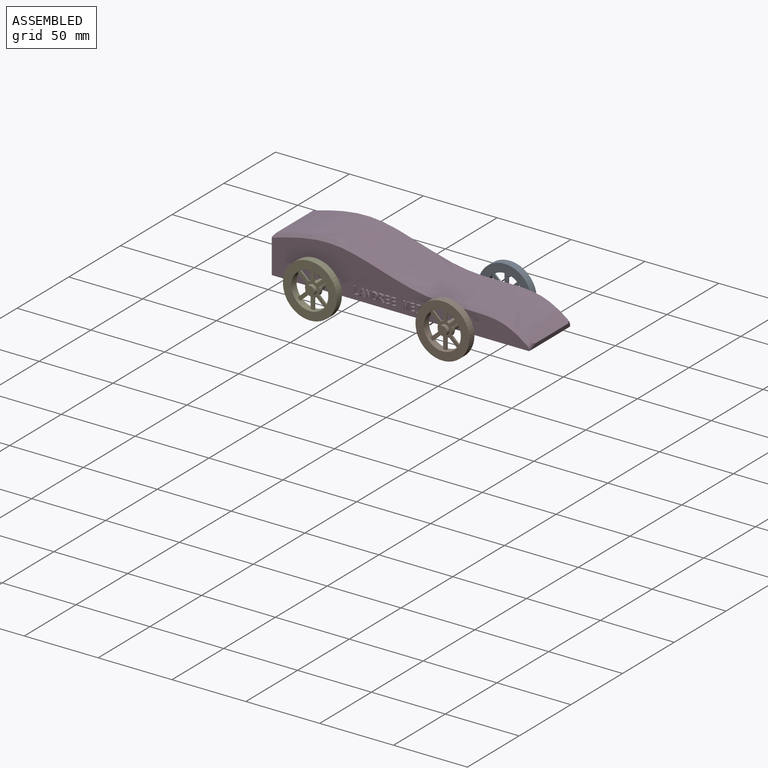
[diagram: assembled view]
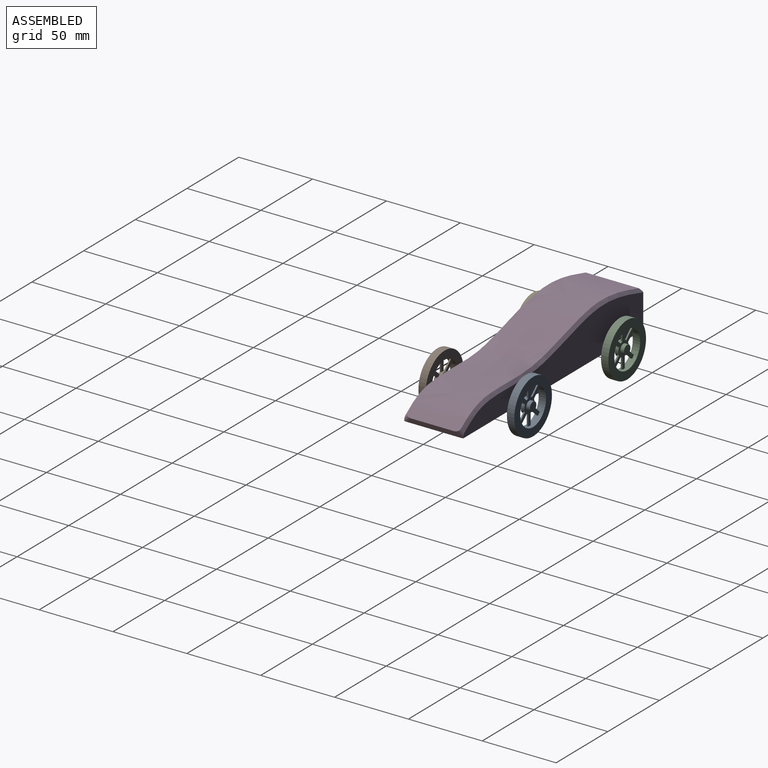
[diagram: assembled view, second angle]
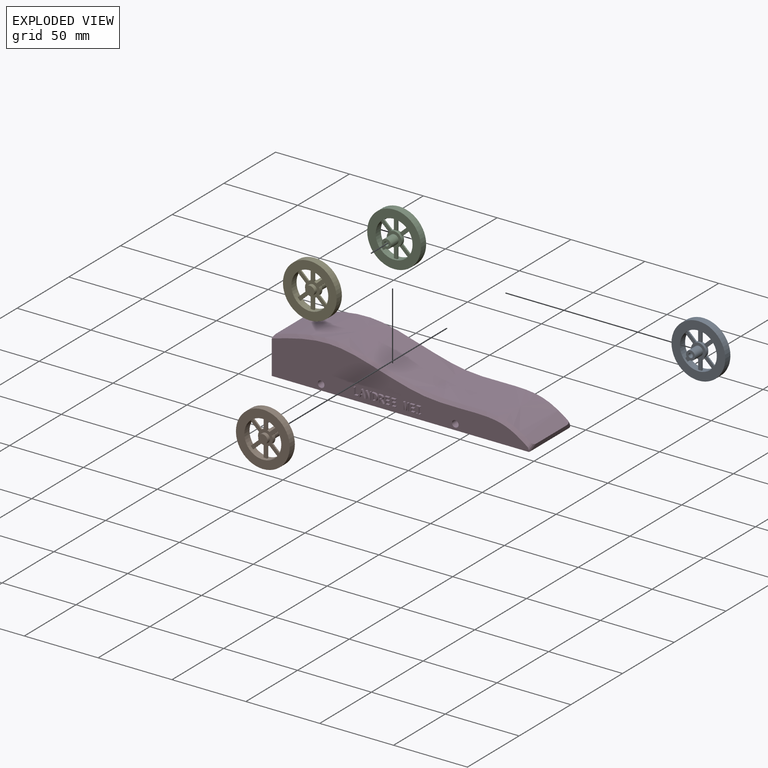
[diagram: exploded view]
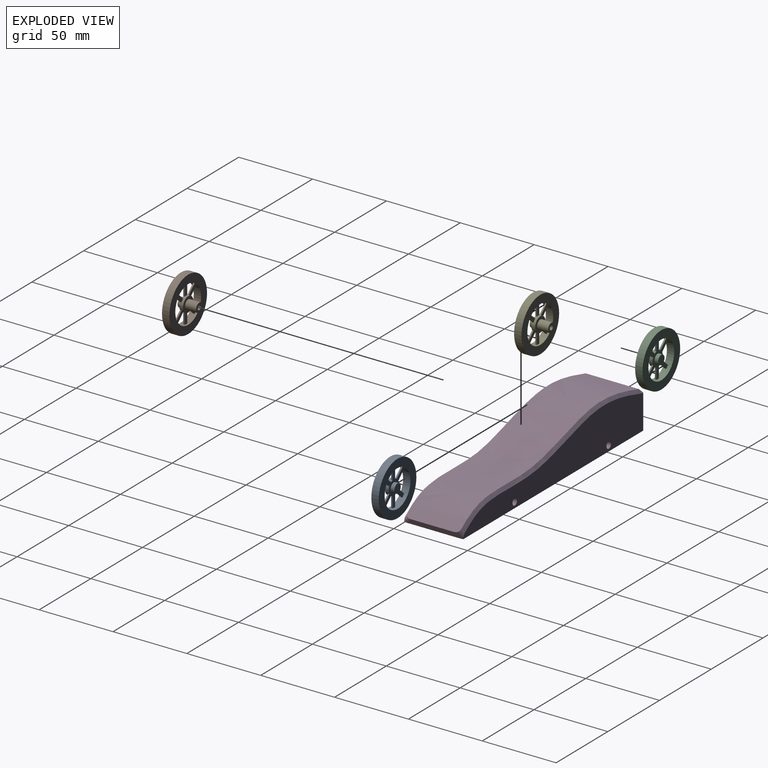
[diagram: exploded view, second angle]
ASSEMBLY  parts=5 mates=2
PART A: 31 faces, bbox 36.4x12.5x36.4 mm
  f0: cylinder r=3.1mm len=7.5mm, axis (0,-1,0), area 146.1mm2, adj f2,f5
  f1: cylinder r=1.5mm len=10mm, axis (0,-1,0), area 94.2mm2, adj f2,f3
  f2: plane 6.2x6.2mm, normal (0,-1,0), area 23.1mm2, adj f0,f1
  f3: plane 3x3mm, normal (0,-1,0), area 7.1mm2, adj f1
  f4: cylinder r=5mm len=10mm, axis (0,1,0), area 64mm2, adj f5,f6,f9,f10,f11,f12,f13,f14
  f5: plane 10x10mm, normal (0,-1,0), area 48.3mm2, adj f0,f4
  f6: plane 25.02x19.87mm, normal (0,1,0), area 156.8mm2, adj f4,f8,f9,f10,f12,f13,f15,f16
  f7: plane 6.18x6.18mm, normal (0,1,0), area 30mm2, adj f8
  f8: cylinder r=3.09mm len=6.18mm, axis (0,-1,0), area 48.5mm2, adj f6,f7
  f9: plane 5.55x5.17mm, normal (0.68,0,-0.73), area 7.6mm2, adj f4,f6,f11,f27
  f10: plane 5.55x5.17mm, normal (-0.68,0,0.73), area 7.6mm2, adj f4,f6,f11,f27
  f11: plane 7.19x6.93mm, normal (0,-1,0), area 18.1mm2, adj f4,f9,f10,f27
  f12: plane 7.59x1mm, normal (1,0,0), area 7.6mm2, adj f4,f6,f14,f27
  f13: plane 7.59x1mm, normal (-1,0,0), area 7.6mm2, adj f4,f6,f14,f27
  f14: plane 7.65x2.4mm, normal (0,-1,0), area 18.1mm2, adj f4,f12,f13,f27
  f15: plane 5.55x5.17mm, normal (-0.68,0,-0.73), area 7.6mm2, adj f4,f6,f17,f27
  f16: plane 5.55x5.17mm, normal (0.68,0,0.73), area 7.6mm2, adj f4,f6,f17,f27
  f17: plane 7.19x6.93mm, normal (0,-1,0), area 18.1mm2, adj f4,f15,f16,f27
  f18: plane 5.55x5.17mm, normal (-0.68,0,0.73), area 7.6mm2, adj f4,f6,f20,f27
  f19: plane 5.55x5.17mm, normal (0.68,0,-0.73), area 7.6mm2, adj f4,f6,f20,f27
  f20: plane 7.19x6.93mm, normal (0,-1,0), area 18.1mm2, adj f4,f18,f19,f27
  f21: plane 7.59x1mm, normal (-1,0,0), area 7.6mm2, adj f4,f6,f23,f27
  f22: plane 7.59x1mm, normal (1,0,0), area 7.6mm2, adj f4,f6,f23,f27
  f23: plane 7.65x2.4mm, normal (0,-1,0), area 18.1mm2, adj f4,f21,f22,f27
  f24: plane 5.55x5.17mm, normal (-0.68,0,-0.73), area 7.6mm2, adj f4,f6,f26,f27
  f25: plane 5.55x5.17mm, normal (0.68,0,0.73), area 7.6mm2, adj f4,f6,f26,f27
  f26: plane 7.19x6.93mm, normal (0,-1,0), area 18.1mm2, adj f4,f24,f25,f27
  f27: cylinder r=12.5mm len=25mm, axis (0,-1,0), area 378.3mm2, adj f6,f9,f10,f11,f12,f13,f14,f15
  f28: cylinder r=18.2mm len=36.4mm, axis (0,-1,0), area 571.8mm2, adj f29,f30
  f29: plane 36.4x36.4mm, normal (0,1,0), area 549.7mm2, adj f27,f28
  f30: plane 36.4x36.4mm, normal (0,-1,0), area 549.7mm2, adj f27,f28
PART B: 31 faces, bbox 36.4x12.5x36.4 mm
  f0: cylinder r=3.1mm len=7.5mm, axis (0,1,0), area 146.1mm2, adj f2,f5
  f1: cylinder r=1.5mm len=10mm, axis (0,1,0), area 94.2mm2, adj f2,f3
  f2: plane 6.2x6.2mm, normal (0,1,0), area 23.1mm2, adj f0,f1
  f3: plane 3x3mm, normal (0,1,0), area 7.1mm2, adj f1
  f4: cylinder r=5mm len=10mm, axis (0,-1,0), area 64mm2, adj f5,f6,f9,f10,f11,f12,f13,f14
  f5: plane 10x10mm, normal (0,1,0), area 48.3mm2, adj f0,f4
  f6: plane 25.02x19.87mm, normal (0,-1,0), area 156.8mm2, adj f4,f8,f9,f10,f12,f13,f15,f16
  f7: plane 6.18x6.18mm, normal (0,-1,0), area 30mm2, adj f8
  f8: cylinder r=3.09mm len=6.18mm, axis (0,1,0), area 48.5mm2, adj f6,f7
  f9: plane 5.55x5.17mm, normal (0.68,0,-0.73), area 7.6mm2, adj f4,f6,f11,f27
  f10: plane 5.55x5.17mm, normal (-0.68,0,0.73), area 7.6mm2, adj f4,f6,f11,f27
  f11: plane 7.19x6.93mm, normal (0,1,0), area 18.1mm2, adj f4,f9,f10,f27
  f12: plane 7.59x1mm, normal (1,0,0), area 7.6mm2, adj f4,f6,f14,f27
  f13: plane 7.59x1mm, normal (-1,0,0), area 7.6mm2, adj f4,f6,f14,f27
  f14: plane 7.65x2.4mm, normal (0,1,0), area 18.1mm2, adj f4,f12,f13,f27
  f15: plane 5.55x5.17mm, normal (-0.68,0,-0.73), area 7.6mm2, adj f4,f6,f17,f27
  f16: plane 5.55x5.17mm, normal (0.68,0,0.73), area 7.6mm2, adj f4,f6,f17,f27
  f17: plane 7.19x6.93mm, normal (0,1,0), area 18.1mm2, adj f4,f15,f16,f27
  f18: plane 5.55x5.17mm, normal (-0.68,0,0.73), area 7.6mm2, adj f4,f6,f20,f27
  f19: plane 5.55x5.17mm, normal (0.68,0,-0.73), area 7.6mm2, adj f4,f6,f20,f27
  f20: plane 7.19x6.93mm, normal (0,1,0), area 18.1mm2, adj f4,f18,f19,f27
  f21: plane 7.59x1mm, normal (-1,0,0), area 7.6mm2, adj f4,f6,f23,f27
  f22: plane 7.59x1mm, normal (1,0,0), area 7.6mm2, adj f4,f6,f23,f27
  f23: plane 7.65x2.4mm, normal (0,1,0), area 18.1mm2, adj f4,f21,f22,f27
  f24: plane 5.55x5.17mm, normal (-0.68,0,-0.73), area 7.6mm2, adj f4,f6,f26,f27
  f25: plane 5.55x5.17mm, normal (0.68,0,0.73), area 7.6mm2, adj f4,f6,f26,f27
  f26: plane 7.19x6.93mm, normal (0,1,0), area 18.1mm2, adj f4,f24,f25,f27
  f27: cylinder r=12.5mm len=25mm, axis (0,1,0), area 378.3mm2, adj f6,f9,f10,f11,f12,f13,f14,f15
  f28: cylinder r=18.2mm len=36.4mm, axis (0,1,0), area 571.8mm2, adj f29,f30
  f29: plane 36.4x36.4mm, normal (0,-1,0), area 549.7mm2, adj f27,f28
  f30: plane 36.4x36.4mm, normal (0,1,0), area 549.7mm2, adj f27,f28
PART C: same geometry as A
PART D: 157 faces, bbox 190.4x44.5x34.6 mm
  f0: plane 174.54x30.7mm, normal (0,-1,0), area 3333.3mm2, adj f1,f3,f8,f9,f13,f14,f16,f17
  f1: plane 40x23.49mm, normal (-1,0,0), area 826.3mm2, adj f0,f2,f3,f7,f10,f11,f13
  f2: plane 174.54x30.7mm, normal (0,1,0), area 3415.2mm2, adj f1,f3,f8,f9,f10,f15
  f3: plane 174.34x40.05mm, normal (0,0,-1), area 6971.5mm2, adj f0,f1,f2,f12,f14,f15
  f4: extruded ~174.08x36mm, area 6463.9mm2, adj f10,f11,f12,f13,f14,f15
  f5: cylinder r=5mm len=44mm, axis (-1,0,0), area 1382.3mm2, adj f6,f7
  f6: sphere r=5mm, area 157.1mm2, adj f5
  f7: cone r=5mm half-angle=45deg, axis (-1,0,0), area 48.9mm2, adj f1,f5
  f8: cylinder r=2.25mm len=40mm, axis (0,-1,0), area 565.5mm2, adj f0,f2
  f9: cylinder r=2.25mm len=40mm, axis (0,-1,0), area 565.5mm2, adj f0,f2
  f10: bspline ~189.91x34.13mm, area 503.3mm2, adj f1,f2,f4,f11,f15
  f11: plane 38.9x1.92mm, normal (-0.8,0,0.6), area 90.2mm2, adj f1,f4,f10,f13
  f12: plane 36.61x3.58mm, normal (0.95,0,-0.33), area 124.9mm2, adj f3,f4,f14,f15
  f13: bspline ~189.91x34.13mm, area 503.9mm2, adj f0,f1,f4,f11,f14
  f14: bspline ~8.2x7.67mm, area 19.4mm2, adj f0,f3,f4,f12,f13
  f15: bspline ~8.2x7.67mm, area 19.4mm2, adj f2,f3,f4,f10,f12
  f16: plane 2.84x1.5mm, normal (0,0,-1), area 4.3mm2, adj f0,f17,f21,f22
  f17: plane 1.5x0.57mm, normal (1,0,0), area 0.9mm2, adj f0,f16,f18,f22
  f18: plane 2.19x1.5mm, normal (0,0,1), area 3.3mm2, adj f0,f17,f19,f22
  f19: plane 4.48x1.5mm, normal (1,0,0), area 6.7mm2, adj f0,f18,f20,f22
  f20: plane 1.5x0.65mm, normal (0,0,1), area 1mm2, adj f0,f19,f21,f22
  f21: plane 5.05x1.5mm, normal (-1,0,0), area 7.6mm2, adj f0,f16,f20,f22
  f22: plane 5.05x2.84mm, normal (0,-1,0), area 4.5mm2, adj f16,f17,f18,f19,f20,f21
  f23: plane 1.5x0.66mm, normal (0,0,-1), area 1mm2, adj f0,f24,f35,f36
  f24: plane 5.07x1.68mm, normal (0.95,0,0.31), area 8mm2, adj f0,f23,f25,f36
  f25: plane 1.5x0.67mm, normal (0,0,1), area 1mm2, adj f0,f24,f26,f36
  f26: plane 5.07x1.67mm, normal (-0.95,0,0.31), area 8mm2, adj f0,f25,f27,f36
  f27: plane 1.5x0.66mm, normal (0,0,-1), area 1mm2, adj f0,f26,f28,f36
  f28: plane 1.57x1.5mm, normal (0.95,0,-0.31), area 2.5mm2, adj f0,f27,f29,f36
  f29: plane 1.7x1.5mm, normal (0,0,-1), area 2.5mm2, adj f0,f28,f35,f36
  f30: plane 1.5x1.33mm, normal (0,0,1), area 2mm2, adj f31,f34,f36,f37
  f31: plane 1.61x1.5mm, normal (0.96,0,-0.29), area 2.5mm2, adj f30,f32,f36,f37
  f32: extruded ~1.5x0.63mm, area 1mm2, adj f31,f33,f36,f37
  f33: extruded ~1.5x0.78mm, area 1.2mm2, adj f32,f34,f36,f37
  f34: plane 1.5x1.47mm, normal (-0.95,0,-0.3), area 2.3mm2, adj f30,f33,f36,f37
  f35: plane 1.57x1.5mm, normal (-0.95,0,-0.3), area 2.5mm2, adj f0,f23,f29,f36
  f36: plane 5.07x4.02mm, normal (0,-1,0), area 7mm2, adj f23,f24,f25,f26,f27,f28,f29,f30
  f37: plane 2.25x1.33mm, normal (0,-1,0), area 1.4mm2, adj f30,f31,f32,f33,f34
  f38: plane 5.05x1.5mm, normal (1,0,0), area 7.6mm2, adj f0,f39,f51,f52
  f39: plane 1.5x0.6mm, normal (0,0,1), area 0.9mm2, adj f0,f38,f40,f52
  f40: plane 2.77x1.5mm, normal (-1,0,0), area 4.1mm2, adj f0,f39,f41,f52
  f41: extruded ~1.5x1.4mm, area 2.1mm2, adj f0,f40,f42,f52
  f42: plane 1.5x0.02mm, normal (0,0,1), area 0mm2, adj f0,f41,f43,f52
  f43: plane 4.16x2mm, normal (0.9,0,0.43), area 6.9mm2, adj f0,f42,f44,f52
  f44: plane 1.5x0.74mm, normal (0,0,1), area 1.1mm2, adj f0,f43,f45,f52
  f45: plane 5.05x1.5mm, normal (-1,0,0), area 7.6mm2, adj f0,f44,f46,f52
  f46: plane 1.5x0.59mm, normal (0,0,-1), area 0.9mm2, adj f0,f45,f47,f52
  f47: plane 2.74x1.5mm, normal (1,0,0), area 4.1mm2, adj f0,f46,f48,f52
  f48: extruded ~1.5x1.44mm, area 2.2mm2, adj f0,f47,f49,f52
  f49: plane 1.5x0.03mm, normal (0,0,-1), area 0mm2, adj f0,f48,f50,f52
  f50: plane 4.18x2.01mm, normal (-0.9,0,-0.43), area 7mm2, adj f0,f49,f51,f52
  f51: plane 1.5x0.74mm, normal (0,0,-1), area 1.1mm2, adj f0,f38,f50,f52
  f52: plane 5.05x3.31mm, normal (0,-1,0), area 8.6mm2, adj f38,f39,f40,f41,f42,f43,f44,f45
  f53: plane 1.5x1.04mm, normal (0,0,-1), area 1.6mm2, adj f0,f54,f64,f65
  f54: extruded ~1.82x1.5mm, area 3mm2, adj f0,f53,f55,f65
  f55: extruded ~1.91x1.5mm, area 3.1mm2, adj f0,f54,f56,f65
  f56: extruded ~1.83x1.5mm, area 3mm2, adj f0,f55,f57,f65
  f57: extruded ~1.7x1.5mm, area 2.8mm2, adj f0,f56,f58,f65
  f58: plane 1.5x1.18mm, normal (0,0,1), area 1.8mm2, adj f0,f57,f64,f65
  f59: plane 1.5x0.47mm, normal (0,0,-1), area 0.7mm2, adj f60,f63,f65,f66
  f60: extruded ~1.95x1.7mm, area 4.5mm2, adj f59,f61,f65,f66
  f61: extruded ~2x1.84mm, area 4.7mm2, adj f60,f62,f65,f66
  f62: plane 1.5x0.33mm, normal (0,0,1), area 0.5mm2, adj f61,f63,f65,f66
  f63: plane 3.95x1.5mm, normal (1,0,0), area 5.9mm2, adj f59,f62,f65,f66
  f64: plane 5.05x1.5mm, normal (-1,0,0), area 7.6mm2, adj f0,f53,f58,f65
  f65: plane 5.05x3.5mm, normal (0,-1,0), area 8.1mm2, adj f53,f54,f55,f56,f57,f58,f59,f60
  f66: plane 3.95x2.17mm, normal (0,-1,0), area 7.4mm2, adj f59,f60,f61,f62,f63
  f67: plane 1.5x0.79mm, normal (0,0,-1), area 1.2mm2, adj f0,f68,f83,f84
  f68: plane 2.09x1.5mm, normal (-0.87,0,-0.5), area 3.6mm2, adj f0,f67,f69,f84
  f69: plane 1.5x0.76mm, normal (0,0,-1), area 1.1mm2, adj f0,f68,f70,f84
  f70: plane 2.26x1.5mm, normal (0.86,0,0.52), area 4mm2, adj f0,f69,f71,f84
  f71: extruded ~1.5x1.35mm, area 2.7mm2, adj f0,f70,f72,f84
  f72: extruded ~1.8x1.5mm, area 3.9mm2, adj f0,f71,f73,f84
  f73: plane 1.5x1.23mm, normal (0,0,1), area 1.9mm2, adj f0,f72,f74,f84
  f74: plane 5.05x1.5mm, normal (-1,0,0), area 7.6mm2, adj f0,f73,f75,f84
  f75: plane 1.5x0.65mm, normal (0,0,-1), area 1mm2, adj f0,f74,f83,f84
  f76: plane 1.87x1.5mm, normal (1,0,0), area 2.8mm2, adj f77,f82,f84,f85
  f77: plane 1.5x0.55mm, normal (0,0,-1), area 0.8mm2, adj f76,f78,f84,f85
  f78: extruded ~1.5x0.89mm, area 1.4mm2, adj f77,f79,f84,f85
  f79: extruded ~1.5x0.7mm, area 1.2mm2, adj f78,f80,f84,f85
  f80: extruded ~1.5x0.73mm, area 1.2mm2, adj f79,f81,f84,f85
  f81: extruded ~1.5x0.87mm, area 1.4mm2, adj f80,f82,f84,f85
  f82: plane 1.5x0.57mm, normal (0,0,1), area 0.8mm2, adj f76,f81,f84,f85
  f83: plane 2.09x1.5mm, normal (1,0,0), area 3.1mm2, adj f0,f67,f75,f84
  f84: plane 5.05x3.4mm, normal (0,-1,0), area 8mm2, adj f67,f68,f69,f70,f71,f72,f73,f74
  f85: plane 1.87x1.72mm, normal (0,-1,0), area 2.9mm2, adj f76,f77,f78,f79,f80,f81,f82
  f86: plane 1.5x0.57mm, normal (1,0,0), area 0.9mm2, adj f0,f87,f97,f98
  f87: plane 2.27x1.5mm, normal (0,0,1), area 3.4mm2, adj f0,f86,f88,f98
  f88: plane 1.8x1.5mm, normal (1,0,0), area 2.7mm2, adj f0,f87,f89,f98
  f89: plane 2.13x1.5mm, normal (0,0,-1), area 3.2mm2, adj f0,f88,f90,f98
  f90: plane 1.5x0.56mm, normal (1,0,0), area 0.8mm2, adj f0,f89,f91,f98
  f91: plane 2.13x1.5mm, normal (0,0,1), area 3.2mm2, adj f0,f90,f92,f98
  f92: plane 1.56x1.5mm, normal (1,0,0), area 2.3mm2, adj f0,f91,f93,f98
  f93: plane 2.27x1.5mm, normal (0,0,-1), area 3.4mm2, adj f0,f92,f94,f98
  f94: plane 1.5x0.57mm, normal (1,0,0), area 0.9mm2, adj f0,f93,f95,f98
  f95: plane 2.91x1.5mm, normal (0,0,1), area 4.4mm2, adj f0,f94,f96,f98
  f96: plane 5.05x1.5mm, normal (-1,0,0), area 7.6mm2, adj f0,f95,f97,f98
  f97: plane 2.91x1.5mm, normal (0,0,-1), area 4.4mm2, adj f0,f86,f96,f98
  f98: plane 5.05x2.91mm, normal (0,-1,0), area 7mm2, adj f86,f87,f88,f89,f90,f91,f92,f93
  f99: plane 1.5x0.57mm, normal (1,0,0), area 0.9mm2, adj f0,f100,f110,f111
  f100: plane 2.27x1.5mm, normal (0,0,1), area 3.4mm2, adj f0,f99,f101,f111
  f101: plane 1.8x1.5mm, normal (1,0,0), area 2.7mm2, adj f0,f100,f102,f111
  f102: plane 2.13x1.5mm, normal (0,0,-1), area 3.2mm2, adj f0,f101,f103,f111
  f103: plane 1.5x0.56mm, normal (1,0,0), area 0.8mm2, adj f0,f102,f104,f111
  f104: plane 2.13x1.5mm, normal (0,0,1), area 3.2mm2, adj f0,f103,f105,f111
  f105: plane 1.56x1.5mm, normal (1,0,0), area 2.3mm2, adj f0,f104,f106,f111
  f106: plane 2.27x1.5mm, normal (0,0,-1), area 3.4mm2, adj f0,f105,f107,f111
  f107: plane 1.5x0.57mm, normal (1,0,0), area 0.9mm2, adj f0,f106,f108,f111
  f108: plane 2.91x1.5mm, normal (0,0,1), area 4.4mm2, adj f0,f107,f109,f111
  f109: plane 5.05x1.5mm, normal (-1,0,0), area 7.6mm2, adj f0,f108,f110,f111
  f110: plane 2.91x1.5mm, normal (0,0,-1), area 4.4mm2, adj f0,f99,f109,f111
  f111: plane 5.05x2.91mm, normal (0,-1,0), area 7mm2, adj f99,f100,f101,f102,f103,f104,f105,f106
  f112: plane 1.5x0.53mm, normal (0,0,-1), area 0.8mm2, adj f0,f113,f129,f130
  f113: plane 4.42x1.5mm, normal (0.98,0,-0.22), area 6.8mm2, adj f0,f112,f114,f130
  f114: plane 1.5x0.03mm, normal (0,0,-1), area 0mm2, adj f0,f113,f115,f130
  f115: extruded ~1.5x1.35mm, area 2mm2, adj f0,f114,f116,f130
  f116: plane 3.07x1.5mm, normal (-1,0,0), area 4.6mm2, adj f0,f115,f117,f130
  f117: plane 1.5x0.53mm, normal (0,0,-1), area 0.8mm2, adj f0,f116,f118,f130
  f118: plane 5.05x1.5mm, normal (1,0,0), area 7.6mm2, adj f0,f117,f119,f130
  f119: plane 1.5x0.87mm, normal (0,0,1), area 1.3mm2, adj f0,f118,f120,f130
  f120: plane 4.12x1.5mm, normal (-0.98,0,0.21), area 6.3mm2, adj f0,f119,f121,f130
  f121: plane 1.5x0.02mm, normal (0,0,1), area 0mm2, adj f0,f120,f122,f130
  f122: plane 4.12x1.5mm, normal (0.98,0,0.2), area 6.3mm2, adj f0,f121,f123,f130
  f123: plane 1.5x0.85mm, normal (0,0,1), area 1.3mm2, adj f0,f122,f124,f130
  f124: plane 5.05x1.5mm, normal (-1,0,0), area 7.6mm2, adj f0,f123,f125,f130
  f125: plane 1.5x0.52mm, normal (0,0,-1), area 0.8mm2, adj f0,f124,f126,f130
  f126: plane 3.02x1.5mm, normal (1,0,0), area 4.5mm2, adj f0,f125,f127,f130
  f127: extruded ~1.5x1.4mm, area 2.1mm2, adj f0,f126,f128,f130
  f128: plane 1.5x0.03mm, normal (0,0,-1), area 0mm2, adj f0,f127,f129,f130
  f129: plane 4.42x1.5mm, normal (-0.98,0,-0.21), area 6.8mm2, adj f0,f112,f128,f130
  f130: plane 5.05x3.47mm, normal (0,-1,0), area 9.8mm2, adj f112,f113,f114,f115,f116,f117,f118,f119
  f131: plane 1.5x0.57mm, normal (1,0,0), area 0.9mm2, adj f0,f132,f142,f143
  f132: plane 2.27x1.5mm, normal (0,0,1), area 3.4mm2, adj f0,f131,f133,f143
  f133: plane 1.8x1.5mm, normal (1,0,0), area 2.7mm2, adj f0,f132,f134,f143
  f134: plane 2.13x1.5mm, normal (0,0,-1), area 3.2mm2, adj f0,f133,f135,f143
  f135: plane 1.5x0.56mm, normal (1,0,0), area 0.8mm2, adj f0,f134,f136,f143
  f136: plane 2.13x1.5mm, normal (0,0,1), area 3.2mm2, adj f0,f135,f137,f143
  f137: plane 1.56x1.5mm, normal (1,0,0), area 2.3mm2, adj f0,f136,f138,f143
  f138: plane 2.27x1.5mm, normal (0,0,-1), area 3.4mm2, adj f0,f137,f139,f143
  f139: plane 1.5x0.57mm, normal (1,0,0), area 0.9mm2, adj f0,f138,f140,f143
  f140: plane 2.91x1.5mm, normal (0,0,1), area 4.4mm2, adj f0,f139,f141,f143
  f141: plane 5.05x1.5mm, normal (-1,0,0), area 7.6mm2, adj f0,f140,f142,f143
  f142: plane 2.91x1.5mm, normal (0,0,-1), area 4.4mm2, adj f0,f131,f141,f143
  f143: plane 5.05x2.91mm, normal (0,-1,0), area 7mm2, adj f131,f132,f133,f134,f135,f136,f137,f138
  f144: plane 1.5x0.42mm, normal (1,0,0), area 0.6mm2, adj f0,f145,f155,f156
  f145: plane 1.5x1.02mm, normal (0.07,0,1), area 1.5mm2, adj f0,f144,f146,f156
  f146: plane 4.06x1.5mm, normal (1,0,0), area 6.1mm2, adj f0,f145,f147,f156
  f147: plane 1.5x1.02mm, normal (0.07,0,-1), area 1.5mm2, adj f0,f146,f148,f156
  f148: plane 1.5x0.43mm, normal (1,0,0), area 0.6mm2, adj f0,f147,f149,f156
  f149: plane 2.68x1.5mm, normal (0,0,1), area 4mm2, adj f0,f148,f150,f156
  f150: plane 1.5x0.43mm, normal (-1,0,0), area 0.6mm2, adj f0,f149,f151,f156
  f151: plane 1.5x1.02mm, normal (-0.07,0,-1), area 1.5mm2, adj f0,f150,f152,f156
  f152: plane 4.06x1.5mm, normal (-1,0,0), area 6.1mm2, adj f0,f151,f153,f156
  f153: plane 1.5x1.02mm, normal (-0.07,0,1), area 1.5mm2, adj f0,f152,f154,f156
  f154: plane 1.5x0.42mm, normal (-1,0,0), area 0.6mm2, adj f0,f153,f155,f156
  f155: plane 2.68x1.5mm, normal (0,0,-1), area 4mm2, adj f0,f144,f154,f156
  f156: plane 5.05x2.68mm, normal (0,-1,0), area 5.1mm2, adj f144,f145,f146,f147,f148,f149,f150,f151
PART E: same geometry as B
PLACE A t=(44.7,18.2,6.89)mm
PLACE B t=(44.52,3.16,6.91)mm
PLACE C t=(-46.34,18.16,6.91)mm
PLACE D t=(-31.98,3.16,3.06)mm
PLACE E t=(-46.12,4.45,6.74)mm
MATE revolute B.f0 <-> D.f9  axis (0,1,0) through (44.52,3.16,6.91)mm
MATE revolute C.f0 <-> D.f8  axis (0,-1,0) through (-46.34,43.16,6.91)mm
